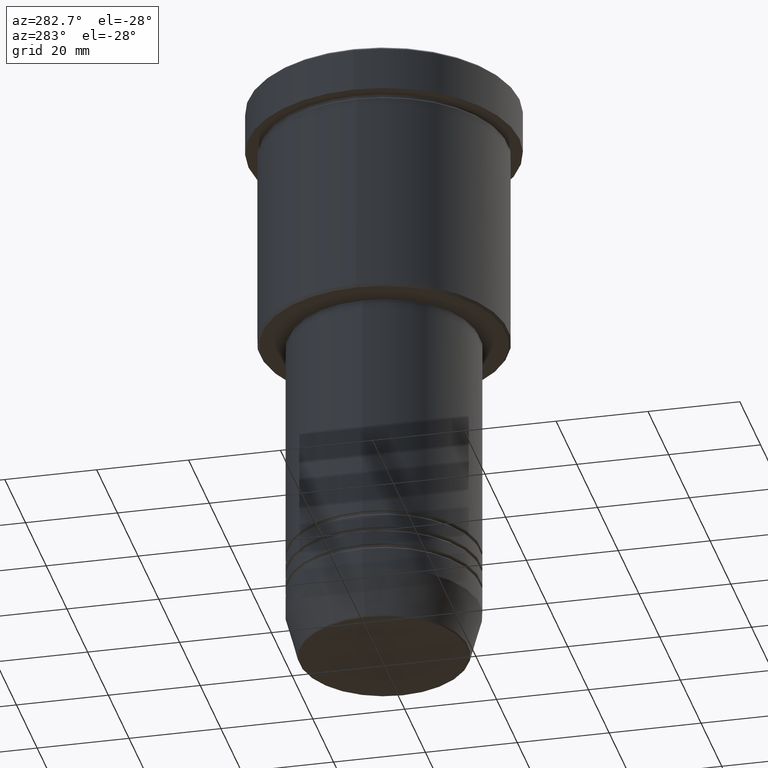
[diagram: clean part render]
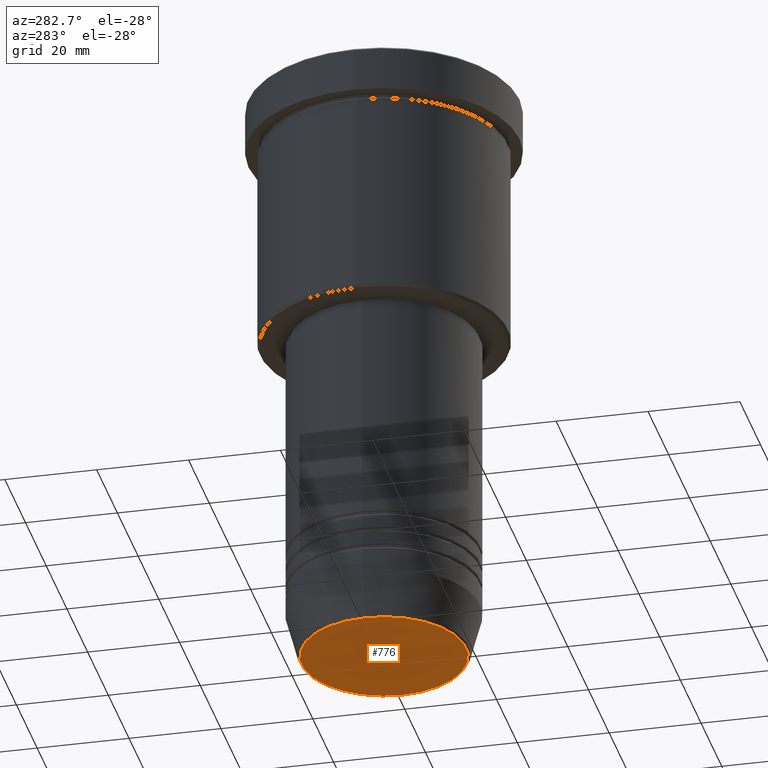
[diagram: same view with one face highlighted and labeled with its STEP entity id]
A machine part, auxiliary view. The second image highlights one B-rep face of the part: STEP entity #776.
In plain terms, the highlighted planar face has unit normal (0, -0, 1).
Its self-contained STEP definition (entity closure, byte-faithful):
#28 = EDGE_LOOP ( 'NONE', ( #1120, #383 ) ) ;
#51 = DIRECTION ( 'NONE',  ( 1.000000000000000000, 0.000000000000000000, 0.000000000000000000 ) ) ;
#108 = CIRCLE ( 'NONE', #783, 17.93684458169928675 ) ;
#248 = CARTESIAN_POINT ( 'NONE',  ( 17.93684458169928675, 0.000000000000000000, -131.0000000000000000 ) ) ;
#267 = VERTEX_POINT ( 'NONE', #248 ) ;
#284 = EDGE_CURVE ( 'NONE', #347, #267, #1099, .T. ) ;
#318 = EDGE_CURVE ( 'NONE', #267, #347, #108, .T. ) ;
#321 = CARTESIAN_POINT ( 'NONE',  ( 0.000000000000000000, 0.000000000000000000, -131.0000000000000000 ) ) ;
#347 = VERTEX_POINT ( 'NONE', #959 ) ;
#383 = ORIENTED_EDGE ( 'NONE', *, *, #284, .T. ) ;
#400 = AXIS2_PLACEMENT_3D ( 'NONE', #321, #876, #51 ) ;
#412 = FACE_OUTER_BOUND ( 'NONE', #28, .T. ) ;
#444 = CARTESIAN_POINT ( 'NONE',  ( 0.000000000000000000, 0.000000000000000000, -131.0000000000000000 ) ) ;
#598 = CARTESIAN_POINT ( 'NONE',  ( 0.000000000000000000, 0.000000000000000000, -131.0000000000000000 ) ) ;
#601 = PLANE ( 'NONE',  #400 ) ;
#645 = AXIS2_PLACEMENT_3D ( 'NONE', #444, #818, #730 ) ;
#730 = DIRECTION ( 'NONE',  ( 1.000000000000000000, 0.000000000000000000, 0.000000000000000000 ) ) ;
#776 = ADVANCED_FACE ( 'NONE', ( #412 ), #601, .F. ) ;
#783 = AXIS2_PLACEMENT_3D ( 'NONE', #598, #869, #976 ) ;
#818 = DIRECTION ( 'NONE',  ( 0.000000000000000000, 0.000000000000000000, -1.000000000000000000 ) ) ;
#869 = DIRECTION ( 'NONE',  ( 0.000000000000000000, 0.000000000000000000, -1.000000000000000000 ) ) ;
#876 = DIRECTION ( 'NONE',  ( 0.000000000000000000, -0.000000000000000000, 1.000000000000000000 ) ) ;
#959 = CARTESIAN_POINT ( 'NONE',  ( -17.93684458169928675, 2.226202879662624346E-15, -131.0000000000000000 ) ) ;
#976 = DIRECTION ( 'NONE',  ( 1.000000000000000000, 0.000000000000000000, 0.000000000000000000 ) ) ;
#1099 = CIRCLE ( 'NONE', #645, 17.93684458169928675 ) ;
#1120 = ORIENTED_EDGE ( 'NONE', *, *, #318, .T. ) ;